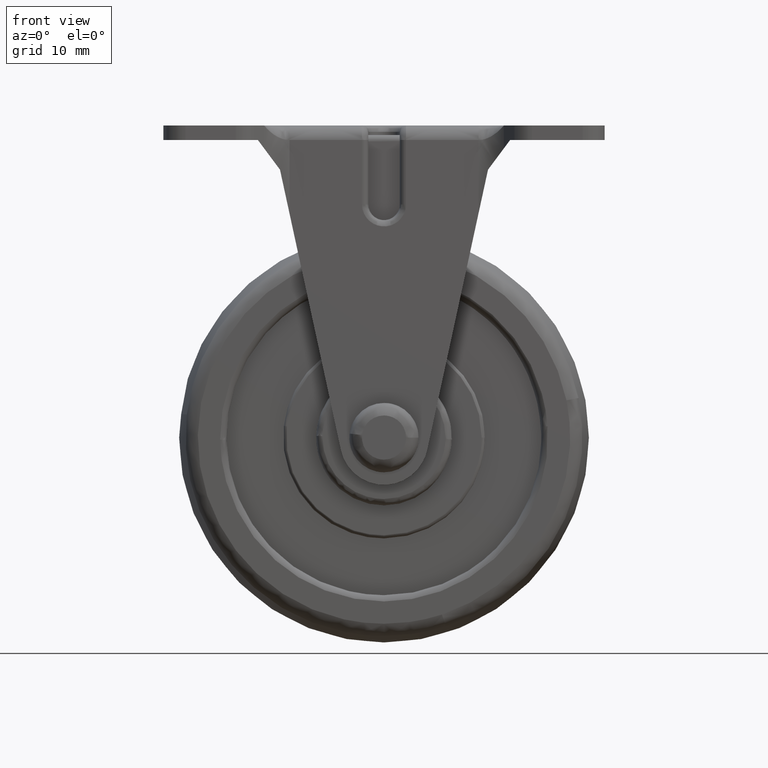
[diagram: clean part render]
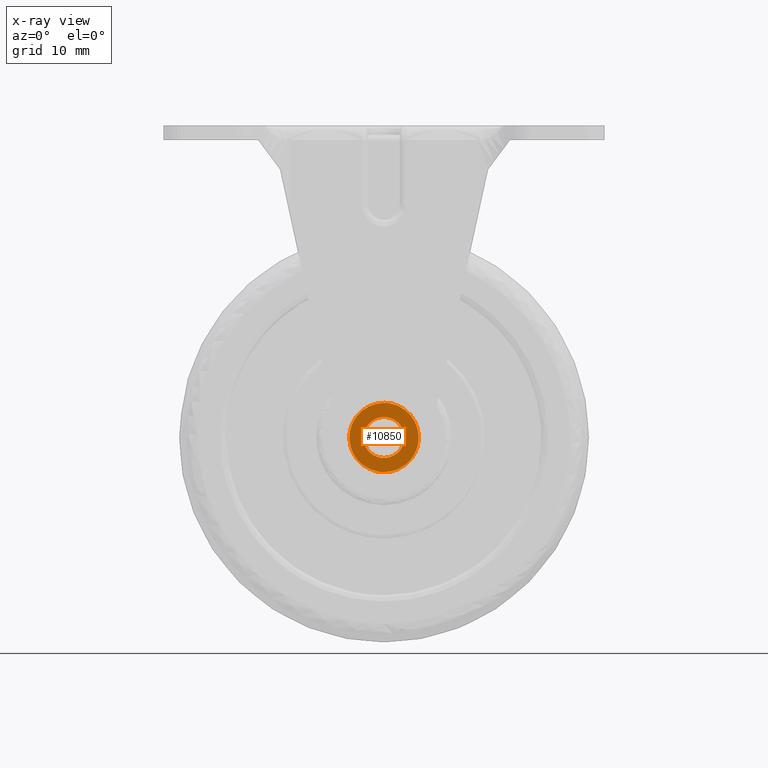
[diagram: x-ray — body ghosted, one internal face saturated and labeled with its STEP entity id]
A machine part, front view, then the same camera in x-ray: the body is ghosted and one INTERNAL B-rep face — a face not visible from any outside direction — is saturated and labeled: STEP entity #10850.
In plain terms, the highlighted face is a freeform B-spline surface patch.
Its self-contained STEP definition (entity closure, byte-faithful):
#9764=CARTESIAN_POINT('',(-3.243938094859623,-15.300003000000000,0.198407753675394));
#9765=VERTEX_POINT('',#9764);
#9771=CARTESIAN_POINT('',(0.0,-15.300003000000000,3.250000000000002));
#9772=VERTEX_POINT('',#9771);
#9773=CARTESIAN_POINT('',(0.0,-15.300003000000000,3.250000000000002));
#9774=CARTESIAN_POINT('',(-3.057294717090155,-15.300003000000006,3.250000000000002));
#9775=CARTESIAN_POINT('',(-3.243938094859622,-15.300002999999998,0.198407753675394));
#9783=(BOUNDED_CURVE()B_SPLINE_CURVE(2,(#9773,#9774,#9775),.UNSPECIFIED.,.F.,.U.)B_SPLINE_CURVE_WITH_KNOTS((3,3),(0.500000000000000,0.739332962222063),.UNSPECIFIED.)CURVE()GEOMETRIC_REPRESENTATION_ITEM()RATIONAL_B_SPLINE_CURVE((1.0,0.719603993306486,0.976072041630541))REPRESENTATION_ITEM(''));
#9784=EDGE_CURVE('',#9772,#9765,#9783,.T.);
#9786=CARTESIAN_POINT('',(3.227280960661336,-15.300003000000000,-0.383611262807597));
#9787=VERTEX_POINT('',#9786);
#9788=CARTESIAN_POINT('',(3.227280960661335,-15.300003000000000,-0.383611262807597));
#9789=CARTESIAN_POINT('',(3.250000000000000,-15.300002999999995,-0.192478389043671));
#9790=CARTESIAN_POINT('',(3.250000000000000,-15.300003000000000,1.647096E-015));
#9791=CARTESIAN_POINT('',(3.250000000000000,-15.300003000000000,3.250000000000003));
#9792=CARTESIAN_POINT('',(0.0,-15.300003000000000,3.250000000000002));
#9800=(BOUNDED_CURVE()B_SPLINE_CURVE(2,(#9788,#9789,#9790,#9791,#9792),.UNSPECIFIED.,.F.,.U.)B_SPLINE_CURVE_WITH_KNOTS((3,2,3),(0.229562473497511,0.250000000000000,0.500000000000000),.UNSPECIFIED.)CURVE()GEOMETRIC_REPRESENTATION_ITEM()RATIONAL_B_SPLINE_CURVE((0.956026754152344,0.976055948312403,1.0,0.707106781186547,1.0))REPRESENTATION_ITEM(''));
#9801=EDGE_CURVE('',#9787,#9772,#9800,.T.);
#9845=CARTESIAN_POINT('',(0.0,-15.300003000000000,-3.249999999999998));
#9846=VERTEX_POINT('',#9845);
#9847=CARTESIAN_POINT('',(0.0,-15.300003000000000,-3.249999999999998));
#9848=CARTESIAN_POINT('',(2.886567209030052,-15.300003000000004,-3.249999999999999));
#9849=CARTESIAN_POINT('',(3.227280960661336,-15.300003000000002,-0.383611262807597));
#9857=(BOUNDED_CURVE()B_SPLINE_CURVE(2,(#9847,#9848,#9849),.UNSPECIFIED.,.F.,.U.)B_SPLINE_CURVE_WITH_KNOTS((3,3),(0.0,0.229562473497511),.UNSPECIFIED.)CURVE()GEOMETRIC_REPRESENTATION_ITEM()RATIONAL_B_SPLINE_CURVE((1.0,0.731050832874144,0.956026754152344))REPRESENTATION_ITEM(''));
#9858=EDGE_CURVE('',#9846,#9787,#9857,.T.);
#9860=CARTESIAN_POINT('',(-3.243938094859623,-15.300003000000002,0.198407753675394));
#9861=CARTESIAN_POINT('',(-3.250000000000000,-15.300002999999998,0.099296480908048));
#9862=CARTESIAN_POINT('',(-3.250000000000000,-15.300003000000000,1.647096E-015));
#9863=CARTESIAN_POINT('',(-3.250000000000000,-15.300003000000000,-3.249999999999998));
#9864=CARTESIAN_POINT('',(0.0,-15.300003000000000,-3.249999999999998));
#9872=(BOUNDED_CURVE()B_SPLINE_CURVE(2,(#9860,#9861,#9862,#9863,#9864),.UNSPECIFIED.,.F.,.U.)B_SPLINE_CURVE_WITH_KNOTS((3,2,3),(0.739332962222064,0.750000000000000,1.0),.UNSPECIFIED.)CURVE()GEOMETRIC_REPRESENTATION_ITEM()RATIONAL_B_SPLINE_CURVE((0.976072041630542,0.987502787880062,1.0,0.707106781186547,1.0))REPRESENTATION_ITEM(''));
#9873=EDGE_CURVE('',#9765,#9846,#9872,.T.);
#9933=CARTESIAN_POINT('',(3.423827197224306,-15.300003000000000,-4.304347491029136));
#9934=VERTEX_POINT('',#9933);
#9940=CARTESIAN_POINT('',(0.0,-15.300003000000000,5.499999999999911));
#9941=VERTEX_POINT('',#9940);
#9942=CARTESIAN_POINT('',(3.423827197224305,-15.300003000000002,-4.304347491029135));
#9943=CARTESIAN_POINT('',(5.499999999999909,-15.300003000000002,-2.652887676716541));
#9944=CARTESIAN_POINT('',(5.499999999999909,-15.300003000000000,1.647096E-015));
#9945=CARTESIAN_POINT('',(5.499999999999910,-15.300002999999997,5.499999999999911));
#9946=CARTESIAN_POINT('',(0.0,-15.300003000000000,5.499999999999911));
#9954=(BOUNDED_CURVE()B_SPLINE_CURVE(2,(#9942,#9943,#9944,#9945,#9946),.UNSPECIFIED.,.F.,.U.)B_SPLINE_CURVE_WITH_KNOTS((3,2,3),(0.107863761186752,0.250000000000000,0.500000000000000),.UNSPECIFIED.)CURVE()GEOMETRIC_REPRESENTATION_ITEM()RATIONAL_B_SPLINE_CURVE((0.856305655971406,0.833477038015801,1.0,0.707106781186548,1.0))REPRESENTATION_ITEM(''));
#9955=EDGE_CURVE('',#9934,#9941,#9954,.T.);
#9957=CARTESIAN_POINT('',(-4.304348160629342,-15.300003000000000,-3.423826355418485));
#9958=VERTEX_POINT('',#9957);
#9959=CARTESIAN_POINT('',(0.0,-15.300003000000000,5.499999999999911));
#9960=CARTESIAN_POINT('',(-5.499999999999910,-15.300002999999997,5.499999999999911));
#9961=CARTESIAN_POINT('',(-5.499999999999909,-15.300003000000000,1.647096E-015));
#9962=CARTESIAN_POINT('',(-5.499999999999910,-15.300003000000006,-1.920683011893119));
#9963=CARTESIAN_POINT('',(-4.304348160629342,-15.300003000000000,-3.423826355418485));
#9971=(BOUNDED_CURVE()B_SPLINE_CURVE(2,(#9959,#9960,#9961,#9962,#9963),.UNSPECIFIED.,.F.,.U.)B_SPLINE_CURVE_WITH_KNOTS((3,2,3),(0.500000000000000,0.750000000000000,0.857863731582227),.UNSPECIFIED.)CURVE()GEOMETRIC_REPRESENTATION_ITEM()RATIONAL_B_SPLINE_CURVE((1.0,0.707106781186548,1.0,0.873629777854605,0.856305665481028))REPRESENTATION_ITEM(''));
#9972=EDGE_CURVE('',#9941,#9958,#9971,.T.);
#10076=CARTESIAN_POINT('',(0.0,-15.300003000000000,-5.499999999999908));
#10077=VERTEX_POINT('',#10076);
#10078=CARTESIAN_POINT('',(-4.304348160629342,-15.300003000000000,-3.423826355418485));
#10079=CARTESIAN_POINT('',(-2.652888339663092,-15.300003000000006,-5.499999999999908));
#10080=CARTESIAN_POINT('',(0.0,-15.300003000000000,-5.499999999999908));
#10088=(BOUNDED_CURVE()B_SPLINE_CURVE(2,(#10078,#10079,#10080),.UNSPECIFIED.,.F.,.U.)B_SPLINE_CURVE_WITH_KNOTS((3,3),(0.857863731582227,1.0),.UNSPECIFIED.)CURVE()GEOMETRIC_REPRESENTATION_ITEM()RATIONAL_B_SPLINE_CURVE((0.856305665481028,0.833477003331943,1.0))REPRESENTATION_ITEM(''));
#10089=EDGE_CURVE('',#9958,#10077,#10088,.T.);
#10091=CARTESIAN_POINT('',(0.0,-15.300003000000000,-5.499999999999908));
#10092=CARTESIAN_POINT('',(1.920683615300943,-15.300002999999998,-5.499999999999908));
#10093=CARTESIAN_POINT('',(3.423827197224305,-15.300003000000002,-4.304347491029135));
#10101=(BOUNDED_CURVE()B_SPLINE_CURVE(2,(#10091,#10092,#10093),.UNSPECIFIED.,.F.,.U.)B_SPLINE_CURVE_WITH_KNOTS((3,3),(0.0,0.107863761186752),.UNSPECIFIED.)CURVE()GEOMETRIC_REPRESENTATION_ITEM()RATIONAL_B_SPLINE_CURVE((1.0,0.873629743170746,0.856305655971406))REPRESENTATION_ITEM(''));
#10102=EDGE_CURVE('',#10077,#9934,#10101,.T.);
#10833=CARTESIAN_POINT('',(-6.049441885979859,-15.300003000000000,-6.049449978679764));
#10834=CARTESIAN_POINT('',(-6.049441885979859,-15.300003000000000,6.049450273722759));
#10835=CARTESIAN_POINT('',(6.049321311743942,-15.300003000000000,-6.049449978679764));
#10836=CARTESIAN_POINT('',(6.049321311743942,-15.300003000000000,6.049450273722759));
#10837=B_SPLINE_SURFACE_WITH_KNOTS('',1,1,((#10833,#10835),(#10834,#10836)),.UNSPECIFIED.,.F.,.F.,.U.,(2,2),(2,2),(0.0,12.098900252402521),(0.0,12.098763197723800),.UNSPECIFIED.);
#10838=ORIENTED_EDGE('',*,*,#10089,.F.);
#10839=ORIENTED_EDGE('',*,*,#9972,.F.);
#10840=ORIENTED_EDGE('',*,*,#9955,.F.);
#10841=ORIENTED_EDGE('',*,*,#10102,.F.);
#10842=EDGE_LOOP('',(#10838,#10839,#10840,#10841));
#10843=FACE_OUTER_BOUND('',#10842,.T.);
#10844=ORIENTED_EDGE('',*,*,#9784,.T.);
#10845=ORIENTED_EDGE('',*,*,#9873,.T.);
#10846=ORIENTED_EDGE('',*,*,#9858,.T.);
#10847=ORIENTED_EDGE('',*,*,#9801,.T.);
#10848=EDGE_LOOP('',(#10844,#10845,#10846,#10847));
#10849=FACE_BOUND('',#10848,.T.);
#10850=ADVANCED_FACE('',(#10843,#10849),#10837,.T.);